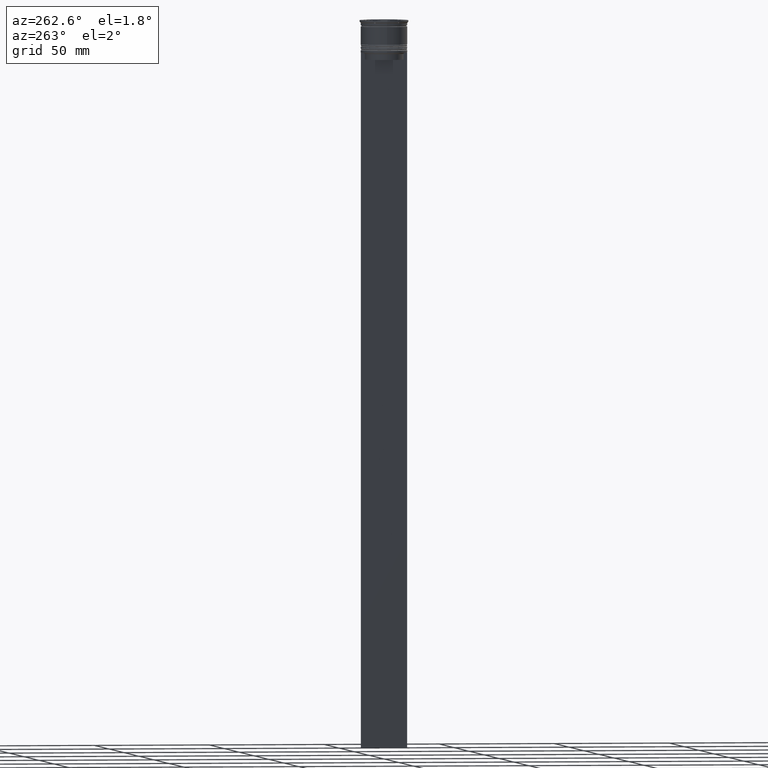
[diagram: clean part render]
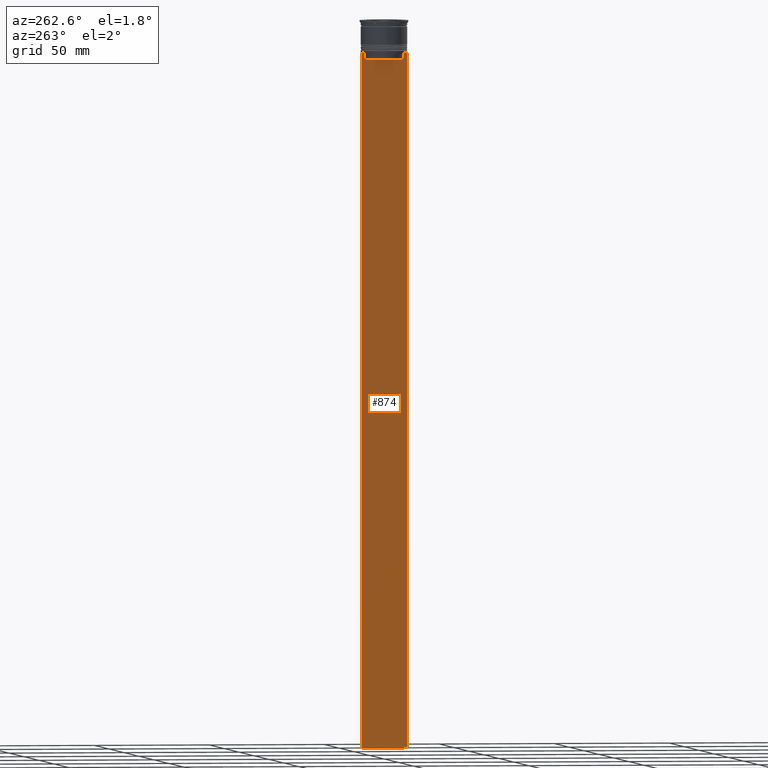
[diagram: same view with one face highlighted and labeled with its STEP entity id]
A machine part, auxiliary view. The second image highlights one B-rep face of the part: STEP entity #874.
In plain terms, the highlighted planar face has unit normal (-1, 0, 0).
Its self-contained STEP definition (entity closure, byte-faithful):
#9 = CARTESIAN_POINT ( 'NONE',  ( -0.5000000000000000000, 8.385105843100616241, -14.50000000000000000 ) ) ;
#24 = CARTESIAN_POINT ( 'NONE',  ( -0.5000000000000000000, -10.00000000000000178, -14.00000000000000178 ) ) ;
#42 = EDGE_CURVE ( 'NONE', #94, #1859, #1516, .T. ) ;
#48 = DIRECTION ( 'NONE',  ( 0.000000000000000000, 0.000000000000000000, -1.000000000000000000 ) ) ;
#50 = CARTESIAN_POINT ( 'NONE',  ( -0.5000000000000000000, -10.00000000000000178, 6.024984394500783047 ) ) ;
#59 = CARTESIAN_POINT ( 'NONE',  ( -0.5000000000000000000, 8.385105843100616241, 0.000000000000000000 ) ) ;
#66 = PLANE ( 'NONE',  #684 ) ;
#83 = ORIENTED_EDGE ( 'NONE', *, *, #1122, .F. ) ;
#94 = VERTEX_POINT ( 'NONE', #236 ) ;
#105 = VERTEX_POINT ( 'NONE', #1094 ) ;
#215 = DIRECTION ( 'NONE',  ( 0.000000000000000000, -1.000000000000000000, 0.000000000000000000 ) ) ;
#236 = CARTESIAN_POINT ( 'NONE',  ( -0.5000000000000000000, -10.00000000000000178, -14.00000000000000178 ) ) ;
#246 = VECTOR ( 'NONE', #1668, 1000.000000000000000 ) ;
#297 = EDGE_CURVE ( 'NONE', #307, #744, #1453, .T. ) ;
#299 = CARTESIAN_POINT ( 'NONE',  ( -0.5000000000000000000, 8.719005771582351016, -14.16667453442324742 ) ) ;
#307 = VERTEX_POINT ( 'NONE', #1658 ) ;
#329 = DIRECTION ( 'NONE',  ( -1.000000000000000000, 0.000000000000000000, 0.000000000000000000 ) ) ;
#366 = EDGE_CURVE ( 'NONE', #1859, #867, #2043, .T. ) ;
#386 = CARTESIAN_POINT ( 'NONE',  ( -0.5000000000000000000, 9.887365675446622149, -14.00000000000000178 ) ) ;
#399 = LINE ( 'NONE', #819, #2321 ) ;
#407 = ORIENTED_EDGE ( 'NONE', *, *, #2355, .F. ) ;
#411 = CARTESIAN_POINT ( 'NONE',  ( -0.5000000000000000000, -10.00000000000000178, -314.0000000000000000 ) ) ;
#451 = ORIENTED_EDGE ( 'NONE', *, *, #366, .F. ) ;
#484 = EDGE_LOOP ( 'NONE', ( #2172, #83, #1138, #1987, #451, #1538, #1146, #937, #1651, #1745, #1409, #407 ) ) ;
#490 = LINE ( 'NONE', #1054, #1841 ) ;
#560 = VECTOR ( 'NONE', #1250, 1000.000000000000000 ) ;
#609 = B_SPLINE_CURVE_WITH_KNOTS ( 'NONE', 3,
 ( #1852, #2472, #1026, #617 ),
 .UNSPECIFIED., .F., .F.,
 ( 4, 4 ),
 ( 0.03898465126933132324, 0.03969388910599660342 ),
 .UNSPECIFIED. ) ;
#617 = CARTESIAN_POINT ( 'NONE',  ( -0.5000000000000000000, -8.885943956609230199, -14.00000000000000178 ) ) ;
#666 = CARTESIAN_POINT ( 'NONE',  ( -0.5000000000000000000, -9.887365675446622149, -14.00000000000000178 ) ) ;
#684 = AXIS2_PLACEMENT_3D ( 'NONE', #1168, #329, #2389 ) ;
#713 = EDGE_CURVE ( 'NONE', #2469, #2380, #399, .T. ) ;
#742 = VECTOR ( 'NONE', #48, 1000.000000000000000 ) ;
#744 = VERTEX_POINT ( 'NONE', #386 ) ;
#787 = EDGE_CURVE ( 'NONE', #2185, #94, #2140, .T. ) ;
#800 = EDGE_CURVE ( 'NONE', #2520, #2185, #490, .T. ) ;
#819 = CARTESIAN_POINT ( 'NONE',  ( -0.5000000000000000000, -8.385105843100616241, 0.000000000000000000 ) ) ;
#867 = VERTEX_POINT ( 'NONE', #1690 ) ;
#874 = ADVANCED_FACE ( 'NONE', ( #1301 ), #66, .T. ) ;
#937 = ORIENTED_EDGE ( 'NONE', *, *, #800, .F. ) ;
#1026 = CARTESIAN_POINT ( 'NONE',  ( -0.5000000000000000000, -8.719005764482790966, -14.16667454151159689 ) ) ;
#1045 = EDGE_CURVE ( 'NONE', #2380, #2520, #609, .T. ) ;
#1054 = CARTESIAN_POINT ( 'NONE',  ( -0.5000000000000000000, -10.00000000000000178, -14.00000000000000178 ) ) ;
#1094 = CARTESIAN_POINT ( 'NONE',  ( -0.5000000000000000000, 8.885943956609230199, -14.00000000000000178 ) ) ;
#1111 = CARTESIAN_POINT ( 'NONE',  ( -0.5000000000000000000, -10.00000000000000178, -14.00000000000000178 ) ) ;
#1122 = EDGE_CURVE ( 'NONE', #744, #105, #1402, .T. ) ;
#1126 = EDGE_CURVE ( 'NONE', #1999, #2469, #2273, .T. ) ;
#1132 = DIRECTION ( 'NONE',  ( 0.000000000000000000, 0.000000000000000000, -1.000000000000000000 ) ) ;
#1135 = CARTESIAN_POINT ( 'NONE',  ( -0.5000000000000000000, 8.552060201981381837, -14.33334167021640226 ) ) ;
#1138 = ORIENTED_EDGE ( 'NONE', *, *, #297, .F. ) ;
#1146 = ORIENTED_EDGE ( 'NONE', *, *, #787, .F. ) ;
#1168 = CARTESIAN_POINT ( 'NONE',  ( -0.5000000000000000000, -10.00000000000000178, 6.024984394500783047 ) ) ;
#1207 = DIRECTION ( 'NONE',  ( 0.000000000000000000, -1.000000000000000000, 0.000000000000000000 ) ) ;
#1227 = CARTESIAN_POINT ( 'NONE',  ( -0.5000000000000000000, 8.400000000000003908, -17.00000000000000000 ) ) ;
#1250 = DIRECTION ( 'NONE',  ( 0.000000000000000000, -1.000000000000000000, 0.000000000000000000 ) ) ;
#1265 = VERTEX_POINT ( 'NONE', #9 ) ;
#1301 = FACE_OUTER_BOUND ( 'NONE', #484, .T. ) ;
#1402 = LINE ( 'NONE', #2225, #2412 ) ;
#1409 = ORIENTED_EDGE ( 'NONE', *, *, #1126, .F. ) ;
#1418 = VECTOR ( 'NONE', #2505, 1000.000000000000000 ) ;
#1453 = LINE ( 'NONE', #24, #560 ) ;
#1460 = VECTOR ( 'NONE', #215, 1000.000000000000000 ) ;
#1473 = LINE ( 'NONE', #2511, #742 ) ;
#1516 = LINE ( 'NONE', #50, #246 ) ;
#1538 = ORIENTED_EDGE ( 'NONE', *, *, #42, .F. ) ;
#1651 = ORIENTED_EDGE ( 'NONE', *, *, #1045, .F. ) ;
#1658 = CARTESIAN_POINT ( 'NONE',  ( -0.5000000000000000000, 9.999999999999994671, -14.00000000000000178 ) ) ;
#1668 = DIRECTION ( 'NONE',  ( 0.000000000000000000, 0.000000000000000000, -1.000000000000000000 ) ) ;
#1690 = CARTESIAN_POINT ( 'NONE',  ( -0.5000000000000000000, 9.999999999999998224, -314.0000000000000000 ) ) ;
#1714 = CARTESIAN_POINT ( 'NONE',  ( -0.5000000000000000000, 8.385105843100616241, -14.50000000000000000 ) ) ;
#1730 = CARTESIAN_POINT ( 'NONE',  ( -0.5000000000000000000, 8.385105843100616241, -17.00000000000000000 ) ) ;
#1745 = ORIENTED_EDGE ( 'NONE', *, *, #713, .F. ) ;
#1781 = CARTESIAN_POINT ( 'NONE',  ( -0.5000000000000000000, -8.885943956609230199, -14.00000000000000178 ) ) ;
#1840 = DIRECTION ( 'NONE',  ( 0.000000000000000000, 1.000000000000000000, 0.000000000000000000 ) ) ;
#1841 = VECTOR ( 'NONE', #1922, 1000.000000000000000 ) ;
#1852 = CARTESIAN_POINT ( 'NONE',  ( -0.5000000000000000000, -8.385105843100616241, -14.50000000000000000 ) ) ;
#1859 = VERTEX_POINT ( 'NONE', #2069 ) ;
#1922 = DIRECTION ( 'NONE',  ( 0.000000000000000000, -1.000000000000000000, 0.000000000000000000 ) ) ;
#1923 = EDGE_CURVE ( 'NONE', #105, #1265, #2664, .T. ) ;
#1956 = CARTESIAN_POINT ( 'NONE',  ( -0.5000000000000000000, -8.385105843100616241, -14.50000000000000000 ) ) ;
#1987 = ORIENTED_EDGE ( 'NONE', *, *, #2237, .T. ) ;
#1999 = VERTEX_POINT ( 'NONE', #1730 ) ;
#2026 = VECTOR ( 'NONE', #1132, 1000.000000000000000 ) ;
#2032 = DIRECTION ( 'NONE',  ( -0.000000000000000000, -0.000000000000000000, 1.000000000000000000 ) ) ;
#2043 = LINE ( 'NONE', #411, #2496 ) ;
#2069 = CARTESIAN_POINT ( 'NONE',  ( -0.5000000000000000000, -10.00000000000000178, -314.0000000000000000 ) ) ;
#2140 = LINE ( 'NONE', #1111, #1418 ) ;
#2172 = ORIENTED_EDGE ( 'NONE', *, *, #1923, .F. ) ;
#2180 = LINE ( 'NONE', #59, #2026 ) ;
#2185 = VERTEX_POINT ( 'NONE', #666 ) ;
#2225 = CARTESIAN_POINT ( 'NONE',  ( -0.5000000000000000000, -10.00000000000000178, -14.00000000000000178 ) ) ;
#2237 = EDGE_CURVE ( 'NONE', #307, #867, #1473, .T. ) ;
#2273 = LINE ( 'NONE', #1227, #1460 ) ;
#2321 = VECTOR ( 'NONE', #2032, 1000.000000000000000 ) ;
#2355 = EDGE_CURVE ( 'NONE', #1265, #1999, #2180, .T. ) ;
#2380 = VERTEX_POINT ( 'NONE', #1956 ) ;
#2389 = DIRECTION ( 'NONE',  ( 0.000000000000000000, 0.000000000000000000, 1.000000000000000000 ) ) ;
#2393 = CARTESIAN_POINT ( 'NONE',  ( -0.5000000000000000000, -8.385105843100616241, -17.00000000000000000 ) ) ;
#2395 = CARTESIAN_POINT ( 'NONE',  ( -0.5000000000000000000, 8.885943956609230199, -14.00000000000000178 ) ) ;
#2412 = VECTOR ( 'NONE', #1207, 1000.000000000000000 ) ;
#2469 = VERTEX_POINT ( 'NONE', #2393 ) ;
#2472 = CARTESIAN_POINT ( 'NONE',  ( -0.5000000000000000000, -8.552060194457769882, -14.33334167772667200 ) ) ;
#2496 = VECTOR ( 'NONE', #1840, 1000.000000000000000 ) ;
#2505 = DIRECTION ( 'NONE',  ( 0.000000000000000000, -1.000000000000000000, 0.000000000000000000 ) ) ;
#2511 = CARTESIAN_POINT ( 'NONE',  ( -0.5000000000000000000, 9.999999999999998224, 6.024984394500783047 ) ) ;
#2520 = VERTEX_POINT ( 'NONE', #1781 ) ;
#2664 = B_SPLINE_CURVE_WITH_KNOTS ( 'NONE', 3,
 ( #2395, #299, #1135, #1714 ),
 .UNSPECIFIED., .F., .F.,
 ( 4, 4 ),
 ( 0.01511546479386908018, 0.01582316445439079997 ),
 .UNSPECIFIED. ) ;